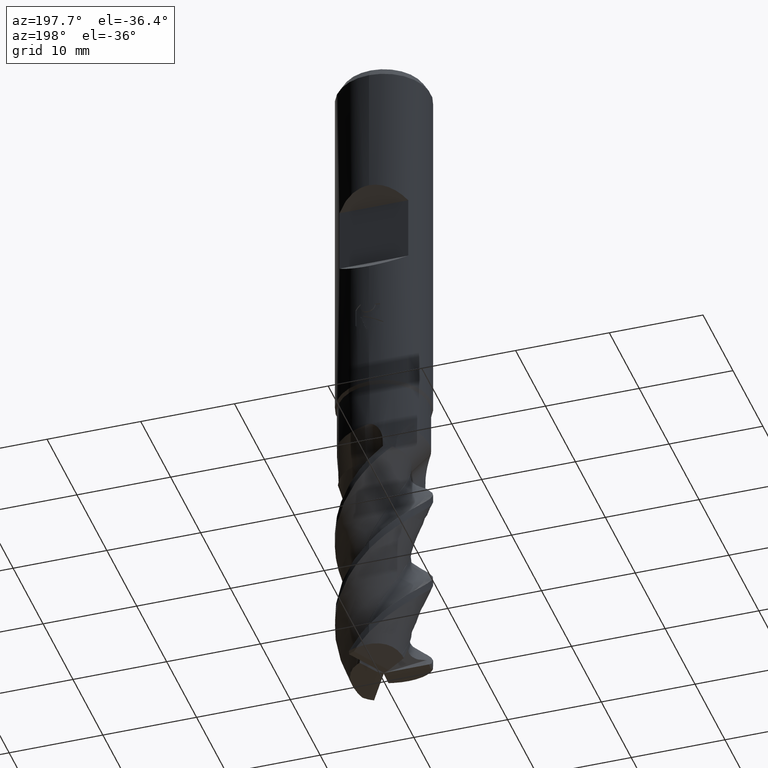
[diagram: clean part render]
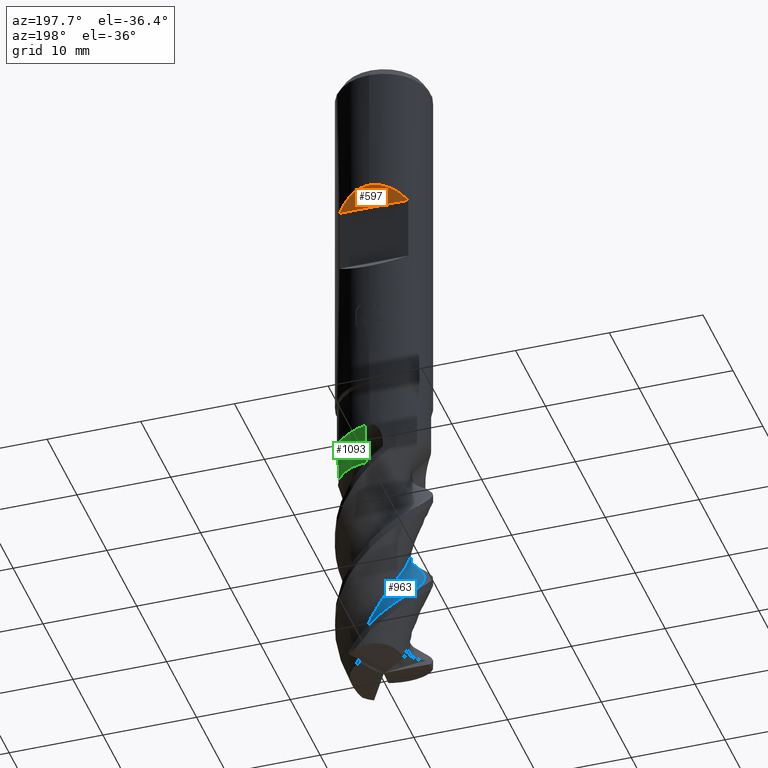
[diagram: same view with three faces highlighted in distinct colors, each labeled with its STEP entity id]
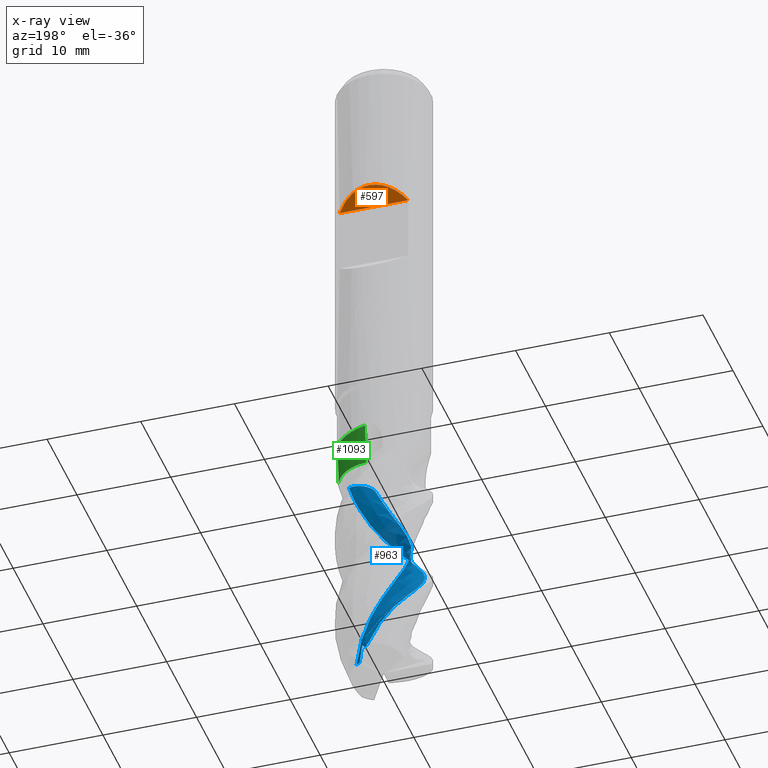
[diagram: x-ray of the same camera — body ghosted, the three highlighted faces saturated]
A machine part, auxiliary view with three faces highlighted in distinct colors.
The next image is the same camera in x-ray (body ghosted, the three faces saturated) — at least one of them is partly hidden behind the body in this view.
Their STEP definitions:

[orange] entity #597 — the highlighted planar face has unit normal (0, -0.7071, 0.7071).
#557=EDGE_CURVE('',#767,#1017,#1468,.T.);
#597=ADVANCED_FACE('',(#1510),#1511,.F.);
#767=VERTEX_POINT('',#1698);
#861=EDGE_CURVE('',#1017,#1009,#1799,.T.);
#1009=VERTEX_POINT('',#1956);
#1017=VERTEX_POINT('',#1965);
#1235=EDGE_CURVE('',#1009,#767,#2210,.T.);
#1468=LINE('',#2865,#2866);
#1510=FACE_OUTER_BOUND('',#3085,.T.);
#1511=PLANE('',#3086);
#1698=CARTESIAN_POINT('',(-3.66606055596467,3.4,-16.5));
#1799=ELLIPSE('',#5457,7.07106781186548,5.0);
#1956=CARTESIAN_POINT('',(-6.12303176911189E-016,5.0,-14.9));
#1965=CARTESIAN_POINT('',(3.66606055596467,3.4,-16.5));
#2210=ELLIPSE('',#8211,7.07106781186548,5.0);
#2865=CARTESIAN_POINT('',(-5.0,3.4,-16.5));
#2866=VECTOR('',#9536,1.0);
#3085=EDGE_LOOP('',(#9580,#9581,#9582));
#3086=AXIS2_PLACEMENT_3D('',#9583,#9584,#9585);
#5457=AXIS2_PLACEMENT_3D('',#9877,#9878,#9879);
#8211=AXIS2_PLACEMENT_3D('',#10332,#10333,#10334);
#9536=DIRECTION('',(1.0,0.0,0.0));
#9580=ORIENTED_EDGE('',*,*,#861,.F.);
#9581=ORIENTED_EDGE('',*,*,#557,.F.);
#9582=ORIENTED_EDGE('',*,*,#1235,.F.);
#9583=CARTESIAN_POINT('',(-5.0,3.4,-16.5));
#9584=DIRECTION('',(0.0,-0.707106781186548,0.707106781186547));
#9585=DIRECTION('',(0.0,-0.707106781186547,-0.707106781186548));
#9877=CARTESIAN_POINT('',(0.0,0.0,-19.9));
#9878=DIRECTION('',(0.0,-0.707106781186548,0.707106781186547));
#9879=DIRECTION('',(0.0,0.707106781186547,0.707106781186548));
#10332=CARTESIAN_POINT('',(0.0,0.0,-19.9));
#10333=DIRECTION('',(0.0,-0.707106781186548,0.707106781186547));
#10334=DIRECTION('',(0.0,0.707106781186547,0.707106781186548));

[blue] entity #963 — the highlighted face is a freeform B-spline surface patch.
#475=VERTEX_POINT('',#1378);
#539=EDGE_CURVE('',#1025,#807,#1448,.T.);
#561=VERTEX_POINT('',#1472);
#765=VERTEX_POINT('',#1696);
#807=VERTEX_POINT('',#1739);
#963=ADVANCED_FACE('',(#1909),#1910,.T.);
#989=EDGE_CURVE('',#1025,#475,#1936,.T.);
#1007=EDGE_CURVE('',#1319,#765,#1954,.T.);
#1025=VERTEX_POINT('',#1973);
#1083=EDGE_CURVE('',#807,#1319,#2038,.T.);
#1265=EDGE_CURVE('',#561,#475,#2243,.T.);
#1319=VERTEX_POINT('',#2301);
#1349=EDGE_CURVE('',#765,#561,#2334,.T.);
#1378=CARTESIAN_POINT('',(4.06640699642665,-0.986518878703578,-48.0));
#1448=B_SPLINE_CURVE_WITH_KNOTS('',3,(#2785,#2786,#2787,#2788,#2789,#2790,#2791,#2792,#2793,#2794,#2795,#2796),.UNSPECIFIED.,.F.,.F.,(4,2,2,2,2,4),(0.0,1.02673922118474,1.71301047965753,2.2225657707492,2.69569481619198,3.17992072773197),.UNSPECIFIED.);
#1472=CARTESIAN_POINT('',(1.69258352083034,-2.26198297649517,-47.9999999999999));
#1696=CARTESIAN_POINT('',(2.49057545117904,1.33481166037854,-72.3034927063041));
#1739=CARTESIAN_POINT('',(1.64875925034888,2.13836985542889,-70.661661749969));
#1909=FACE_OUTER_BOUND('',#6089,.T.);
#1910=B_SPLINE_SURFACE_WITH_KNOTS('',3,3,((#6090,#6091,#6092,#6093,#6094,#6095,#6096,#6097,#6098,#6099,#6100,#6101,#6102,#6103,#6104,#6105,#6106,#6107,#6108,#6109,#6110,#6111,#6112,#6113,#6114,#6115,#6116,#6117,#6118,#6119,#6120,#6121,#6122,#6123,#6124,#6125,#6126,#6127,#6128,#6129,#6130,#6131,#6132,#6133,#6134,#6135,#6136,#6137,#6138,#6139,#6140,#6141,#6142),(#6143,#6144,#6145,#6146,#6147,#6148,#6149,#6150,#6151,#6152,#6153,#6154,#6155,#6156,#6157,#6158,#6159,#6160,#6161,#6162,#6163,#6164,#6165,#6166,#6167,#6168,#6169,#6170,#6171,#6172,#6173,#6174,#6175,#6176,#6177,#6178,#6179,#6180,#6181,#6182,#6183,#6184,#6185,#6186,#6187,#6188,#6189,#6190,#6191,#6192,#6193,#6194,#6195),(#6196,#6197,#6198,#6199,#6200,#6201,#6202,#6203,#6204,#6205,#6206,#6207,#6208,#6209,#6210,#6211,#6212,#6213,#6214,#6215,#6216,#6217,#6218,#6219,#6220,#6221,#6222,#6223,#6224,#6225,#6226,#6227,#6228,#6229,#6230,#6231,#6232,#6233,#6234,#6235,#6236,#6237,#6238,#6239,#6240,#6241,#6242,#6243,#6244,#6245,#6246,#6247,#6248),(#6249,#6250,#6251,#6252,#6253,#6254,#6255,#6256,#6257,#6258,#6259,#6260,#6261,#6262,#6263,#6264,#6265,#6266,#6267,#6268,#6269,#6270,#6271,#6272,#6273,#6274,#6275,#6276,#6277,#6278,#6279,#6280,#6281,#6282,#6283,#6284,#6285,#6286,#6287,#6288,#6289,#6290,#6291,#6292,#6293,#6294,#6295,#6296,#6297,#6298,#6299,#6300,#6301),(#6302,#6303,#6304,#6305,#6306,#6307,#6308,#6309,#6310,#6311,#6312,#6313,#6314,#6315,#6316,#6317,#6318,#6319,#6320,#6321,#6322,#6323,#6324,#6325,#6326,#6327,#6328,#6329,#6330,#6331,#6332,#6333,#6334,#6335,#6336,#6337,#6338,#6339,#6340,#6341,#6342,#6343,#6344,#6345,#6346,#6347,#6348,#6349,#6350,#6351,#6352,#6353,#6354),(#6355,#6356,#6357,#6358,#6359,#6360,#6361,#6362,#6363,#6364,#6365,#6366,#6367,#6368,#6369,#6370,#6371,#6372,#6373,#6374,#6375,#6376,#6377,#6378,#6379,#6380,#6381,#6382,#6383,#6384,#6385,#6386,#6387,#6388,#6389,#6390,#6391,#6392,#6393,#6394,#6395,#6396,#6397,#6398,#6399,#6400,#6401,#6402,#6403,#6404,#6405,#6406,#6407),(#6408,#6409,#6410,#6411,#6412,#6413,#6414,#6415,#6416,#6417,#6418,#6419,#6420,#6421,#6422,#6423,#6424,#6425,#6426,#6427,#6428,#6429,#6430,#6431,#6432,#6433,#6434,#6435,#6436,#6437,#6438,#6439,#6440,#6441,#6442,#6443,#6444,#6445,#6446,#6447,#6448,#6449,#6450,#6451,#6452,#6453,#6454,#6455,#6456,#6457,#6458,#6459,#6460)),.UNSPECIFIED.,.F.,.F.,.F.,(4,1,1,1,4),(4,1,2,1,2,1,2,1,2,1,2,1,2,1,2,1,2,1,2,1,2,1,2,1,2,1,2,1,2,1,2,1,2,1,4),(-1.0741206365629E-016,0.362155819767068,0.724311639534135,1.0864674593012,1.44862327906827),(0.0,0.706621103411192,1.41324220682238,2.11986331023358,2.82648441364477,4.23972662046715,5.65296882728954,7.06621103411192,8.47945324093431,9.89269544775669,11.3059376545791,12.7191798614015,14.1324220682238,15.5456642750462,16.9589064818686,18.372148688691,19.7853908955134,21.1986331023358,22.6118753091582,24.0251175159805,25.4383597228029,26.8516019296253,28.2648441364477,29.6780863432701,31.0913285500925,32.5045707569148,33.9178129637372,35.3310551705596,36.744297377382,38.1575395842044,39.5707817910268,40.9840239978492,42.3972662046715,43.8105084114939,45.2237506183163),.UNSPECIFIED.);
#1936=B_SPLINE_CURVE_WITH_KNOTS('',3,(#6505,#6506,#6507,#6508,#6509,#6510,#6511,#6512,#6513,#6514,#6515,#6516,#6517,#6518,#6519,#6520,#6521,#6522,#6523,#6524,#6525,#6526,#6527,#6528,#6529,#6530,#6531,#6532,#6533,#6534,#6535,#6536,#6537,#6538,#6539,#6540,#6541,#6542,#6543,#6544,#6545,#6546,#6547,#6548,#6549,#6550,#6551,#6552,#6553,#6554,#6555,#6556,#6557),.UNSPECIFIED.,.F.,.F.,(4,1,2,1,2,1,2,1,2,1,2,1,2,1,2,1,2,1,2,1,2,1,2,1,2,1,2,1,2,1,2,1,2,1,4),(0.0,0.706621103411192,1.41324220682238,2.11986331023358,2.82648441364477,4.23972662046715,5.65296882728954,7.06621103411192,8.47945324093431,9.89269544775669,11.3059376545791,12.7191798614015,14.1324220682238,15.5456642750462,16.9589064818686,18.372148688691,19.7853908955134,21.1986331023358,22.6118753091582,24.0251175159805,25.4383597228029,26.8516019296253,28.2648441364477,29.6780863432701,31.0913285500925,32.5045707569148,33.9178129637372,35.3310551705596,36.744297377382,38.1575395842044,39.5707817910268,40.9840239978492,42.3972662046715,43.8105084114939,45.2237506183163),.UNSPECIFIED.);
#1954=B_SPLINE_CURVE_WITH_KNOTS('',3,(#6659,#6660,#6661,#6662,#6663,#6664,#6665,#6666,#6667,#6668),.UNSPECIFIED.,.F.,.F.,(4,2,2,2,4),(0.0,1.12573722191872,2.0004992104101,2.44100699478742,2.87193624953085),.UNSPECIFIED.);
#1973=CARTESIAN_POINT('',(0.720593860777215,4.12172549856063,-71.2433768470738));
#2038=B_SPLINE_CURVE_WITH_KNOTS('',3,(#6867,#6868,#6869,#6870,#6871,#6872,#6873,#6874,#6875,#6876,#6877,#6878,#6879,#6880),.UNSPECIFIED.,.F.,.F.,(4,2,2,2,2,2,4),(0.0,0.16621596690077,0.225050475001909,0.2595427396006,1.72408795182167,2.65228253494648,3.75516007197663),.UNSPECIFIED.);
#2243=B_SPLINE_CURVE_WITH_KNOTS('',3,(#8275,#8276,#8277,#8278,#8279,#8280,#8281,#8282,#8283,#8284),.UNSPECIFIED.,.F.,.F.,(4,2,2,2,4),(0.0,0.794502332663491,1.58897031884491,2.27139265013291,2.9538042096642),.UNSPECIFIED.);
#2301=CARTESIAN_POINT('',(2.09483177205917,1.61215054976336,-72.3697940763852));
#2334=B_SPLINE_CURVE_WITH_KNOTS('',3,(#9366,#9367,#9368,#9369,#9370,#9371,#9372,#9373,#9374,#9375,#9376,#9377,#9378,#9379,#9380,#9381,#9382,#9383,#9384,#9385,#9386,#9387,#9388,#9389,#9390,#9391,#9392,#9393,#9394,#9395,#9396,#9397,#9398,#9399,#9400,#9401,#9402,#9403,#9404,#9405,#9406,#9407,#9408,#9409,#9410,#9411,#9412,#9413,#9414,#9415,#9416,#9417,#9418),.UNSPECIFIED.,.F.,.F.,(4,1,2,1,2,1,2,1,2,1,2,1,2,1,2,1,2,1,2,1,2,1,2,1,2,1,2,1,2,1,2,1,2,1,4),(0.0,0.706621103411192,1.41324220682238,2.11986331023358,2.82648441364477,4.23972662046715,5.65296882728954,7.06621103411192,8.47945324093431,9.89269544775669,11.3059376545791,12.7191798614015,14.1324220682238,15.5456642750462,16.9589064818686,18.372148688691,19.7853908955134,21.1986331023358,22.6118753091582,24.0251175159805,25.4383597228029,26.8516019296253,28.2648441364477,29.6780863432701,31.0913285500925,32.5045707569148,33.9178129637372,35.3310551705596,36.744297377382,38.1575395842044,39.5707817910268,40.9840239978492,42.3972662046715,43.8105084114939,45.2237506183163),.UNSPECIFIED.);
#2785=CARTESIAN_POINT('',(0.720593860789628,4.12172549855254,-71.2433768470937));
#2786=CARTESIAN_POINT('',(0.725421223878158,3.78711420633881,-71.3151025944598));
#2787=CARTESIAN_POINT('',(0.764150281469213,3.46167096913589,-71.3467692998475));
#2788=CARTESIAN_POINT('',(0.88793093994409,2.97815444571011,-71.3196751190944));
#2789=CARTESIAN_POINT('',(0.956390126308941,2.78882670065318,-71.2866901829376));
#2790=CARTESIAN_POINT('',(1.11655827538374,2.5014616668917,-71.1736543652184));
#2791=CARTESIAN_POINT('',(1.19622919979575,2.39532327133872,-71.1089448519812));
#2792=CARTESIAN_POINT('',(1.37162757504882,2.23672091297533,-70.9491818142328));
#2793=CARTESIAN_POINT('',(1.46162434312015,2.18481225883354,-70.8604145765696));
#2794=CARTESIAN_POINT('',(1.64935495477179,2.12960025744241,-70.6630164048915));
#2795=CARTESIAN_POINT('',(1.74369316839668,2.12845859589636,-70.5576878850685));
#2796=CARTESIAN_POINT('',(1.83412567497528,2.14888380482918,-70.4517597464415));
#6089=EDGE_LOOP('',(#10008,#10009,#10010,#10011,#10012,#10013));
#6090=CARTESIAN_POINT('',(-0.0295267974289208,-2.8062706708835,-83.0));
#6091=CARTESIAN_POINT('',(-0.00579214034271125,-2.81836501815114,-82.7657573744245));
#6092=CARTESIAN_POINT('',(0.110249636485281,-2.83687405350782,-82.2962836057392));
#6093=CARTESIAN_POINT('',(0.369687260640706,-2.8148543973796,-81.8266250246895));
#6094=CARTESIAN_POINT('',(0.691709811960466,-2.74553010652248,-81.3586313636446));
#6095=CARTESIAN_POINT('',(0.98493525757139,-2.65615673053245,-80.8908841060232));
#6096=CARTESIAN_POINT('',(1.22972766946684,-2.54336811107991,-80.4224805869103));
#6097=CARTESIAN_POINT('',(1.57058070090469,-2.36082931578825,-79.7188175917944));
#6098=CARTESIAN_POINT('',(1.98308727991386,-2.06261663832254,-78.780738373979));
#6099=CARTESIAN_POINT('',(2.31302673863841,-1.64833517413564,-77.8427121613197));
#6100=CARTESIAN_POINT('',(2.58574280380322,-1.16897408983097,-76.9056367202964));
#6101=CARTESIAN_POINT('',(2.77898930903544,-0.677338665511546,-75.9687965598908));
#6102=CARTESIAN_POINT('',(2.83500336335747,-0.154714894506033,-75.0310184420522));
#6103=CARTESIAN_POINT('',(2.81049090104807,0.390551518738405,-74.0933756828997));
#6104=CARTESIAN_POINT('',(2.71268069040657,0.908268417233613,-73.1560869021415));
#6105=CARTESIAN_POINT('',(2.48041418279797,1.3814782330913,-72.2182810861045));
#6106=CARTESIAN_POINT('',(2.16881870084257,1.82954142425093,-71.2808143599673));
#6107=CARTESIAN_POINT('',(1.81050549060134,2.21475408577214,-70.3436392584322));
#6108=CARTESIAN_POINT('',(1.36214200708264,2.4911936648393,-69.4058280161813));
#6109=CARTESIAN_POINT('',(0.859218613087223,2.70425694041287,-68.4683224547961));
#6110=CARTESIAN_POINT('',(0.350228151292189,2.83910209629625,-67.5311281722079));
#6111=CARTESIAN_POINT('',(-0.176554377660197,2.83373931474158,-66.5933214556663));
#6112=CARTESIAN_POINT('',(-0.715426810014246,2.7457845768792,-65.6558209541882));
#6113=CARTESIAN_POINT('',(-1.21777287057104,2.58847108592242,-64.718627242495));
#6114=CARTESIAN_POINT('',(-1.66054274676615,2.30302139551494,-63.7808188015143));
#6115=CARTESIAN_POINT('',(-2.06952686011407,1.94119646451344,-62.8433187375526));
#6116=CARTESIAN_POINT('',(-2.41059604237042,1.54018465260034,-61.9061261134421));
#6117=CARTESIAN_POINT('',(-2.63290748886635,1.06258608848229,-60.9683179751972));
#6118=CARTESIAN_POINT('',(-2.78590976958771,0.538408617530619,-60.0308170927708));
#6119=CARTESIAN_POINT('',(-2.86056660623762,0.0172953472058144,-59.0936238037233));
#6120=CARTESIAN_POINT('',(-2.79391970660287,-0.505275173188127,-58.1558156233938));
#6121=CARTESIAN_POINT('',(-2.64380327554972,-1.03028287715087,-57.2183149961937));
#6122=CARTESIAN_POINT('',(-2.42904770931378,-1.51091724092596,-56.2811217844332));
#6123=CARTESIAN_POINT('',(-2.09398076025588,-1.91743044620551,-55.3433134708685));
#6124=CARTESIAN_POINT('',(-1.68700212702891,-2.28149175142107,-54.4058127146327));
#6125=CARTESIAN_POINT('',(-1.24901130954022,-2.57354042514841,-53.4686196673999));
#6126=CARTESIAN_POINT('',(-0.748790655610307,-2.73872455856443,-52.5308115609984));
#6127=CARTESIAN_POINT('',(-0.210384897271767,-2.82965258644513,-51.593310692463));
#6128=CARTESIAN_POINT('',(0.315877987856017,-2.84313159005411,-50.6561172290739));
#6129=CARTESIAN_POINT('',(0.827169256171959,-2.71607941985024,-49.7183104962397));
#6130=CARTESIAN_POINT('',(1.33115914371812,-2.50582984445344,-48.7808128753876));
#6131=CARTESIAN_POINT('',(1.78348346828864,-2.23657857765939,-47.8436203505846));
#6132=CARTESIAN_POINT('',(2.14817427376636,-1.85652482175113,-46.9058036046865));
#6133=CARTESIAN_POINT('',(2.46236404156758,-1.40995586065752,-45.9682893688544));
#6134=CARTESIAN_POINT('',(2.70148262217668,-0.940822720790734,-45.0310984323535));
#6135=CARTESIAN_POINT('',(2.80726032377397,-0.424809949635591,-44.0933269658143));
#6136=CARTESIAN_POINT('',(2.83494344440001,0.120152518143714,-43.1558737667204));
#6137=CARTESIAN_POINT('',(2.78730206422883,0.644086538362228,-42.2186602670208));
#6138=CARTESIAN_POINT('',(2.60107349204418,1.13843722522087,-41.2807432419501));
#6139=CARTESIAN_POINT('',(2.33161364305409,1.61661510235977,-40.3431386916283));
#6140=CARTESIAN_POINT('',(2.01024936391757,2.03402102584999,-39.406048687332));
#6141=CARTESIAN_POINT('',(1.59718064667244,2.34734388991507,-38.4684311403967));
#6142=CARTESIAN_POINT('',(1.36329029917874,2.4757703465466,-37.9996932800318));
#6143=CARTESIAN_POINT('',(0.178850158625455,-2.67653930031989,-83.0));
#6144=CARTESIAN_POINT('',(0.20091473316203,-2.6859511458201,-82.7657417541644));
#6145=CARTESIAN_POINT('',(0.310833133590406,-2.69467211327805,-82.2963585972014));
#6146=CARTESIAN_POINT('',(0.556343000668614,-2.65483460979078,-81.8268125234756));
#6147=CARTESIAN_POINT('',(0.85898852976056,-2.56535133670816,-81.3587238535191));
#6148=CARTESIAN_POINT('',(1.13240338600062,-2.458777131082,-80.8908512344283));
#6149=CARTESIAN_POINT('',(1.35744063425004,-2.33344687394403,-80.4224046600466));
#6150=CARTESIAN_POINT('',(1.66871955760013,-2.13472088240561,-79.7188090680845));
#6151=CARTESIAN_POINT('',(2.03966274466036,-1.82065896142973,-78.7808021633608));
#6152=CARTESIAN_POINT('',(2.3237898221972,-1.40195349783937,-77.8428414203539));
#6153=CARTESIAN_POINT('',(2.54888740820884,-0.925127363863783,-76.9057127831286));
#6154=CARTESIAN_POINT('',(2.69708306950062,-0.442681993841333,-75.9687901223826));
#6155=CARTESIAN_POINT('',(2.71231873929647,0.0591968254049684,-75.0310467288362));
#6156=CARTESIAN_POINT('',(2.64925030996146,0.577128505246978,-74.0934217286891));
#6157=CARTESIAN_POINT('',(2.51828423671531,1.06314723638338,-73.1561065172414));
#6158=CARTESIAN_POINT('',(2.26253281858757,1.4969652263998,-72.2183387922939));
#6159=CARTESIAN_POINT('',(1.93290969902551,1.90134839408105,-71.2808678435945));
#6160=CARTESIAN_POINT('',(1.5634748347582,2.24212122002357,-70.3436520796732));
#6161=CARTESIAN_POINT('',(1.11623565397071,2.47274342346616,-69.4058796389849));
#6162=CARTESIAN_POINT('',(0.621355875873478,2.63920751863174,-68.4683747039127));
#6163=CARTESIAN_POINT('',(0.126667719223582,2.73049525853547,-67.5311421551177));
#6164=CARTESIAN_POINT('',(-0.3747200739806,2.68697298456307,-66.5933736923854));
#6165=CARTESIAN_POINT('',(-0.881944689454146,2.56390122128844,-65.6558731504999));
#6166=CARTESIAN_POINT('',(-1.34897178397682,2.37737595733165,-64.7186411287067));
#6167=CARTESIAN_POINT('',(-1.74991010055472,2.07318757857148,-63.7808711397653));
#6168=CARTESIAN_POINT('',(-2.11339026950426,1.69853235543636,-62.843370994989));
#6169=CARTESIAN_POINT('',(-2.4090006102668,1.29164523794195,-61.9061399095688));
#6170=CARTESIAN_POINT('',(-2.58593264669127,0.820504596149241,-60.9683702045189));
#6171=CARTESIAN_POINT('',(-2.69360057522057,0.309741043433766,-60.0308693220925));
#6172=CARTESIAN_POINT('',(-2.72666979960611,-0.19209906671253,-59.0936376784364));
#6173=CARTESIAN_POINT('',(-2.62507949753104,-0.685005701007097,-58.1558679076634));
#6174=CARTESIAN_POINT('',(-2.4437675368529,-1.17448947519867,-57.2183672804633));
#6175=CARTESIAN_POINT('',(-2.2041105578436,-1.61664162118672,-56.2811356975087));
#6176=CARTESIAN_POINT('',(-1.85530390323655,-1.97942596476705,-55.3433657687867));
#6177=CARTESIAN_POINT('',(-1.44088119884898,-2.29679975024918,-54.4058650933655));
#6178=CARTESIAN_POINT('',(-1.00234847607464,-2.54301546511175,-53.4686335894745));
#6179=CARTESIAN_POINT('',(-0.513825470422294,-2.66388201147269,-52.5308639018294));
#6180=CARTESIAN_POINT('',(0.00597980527220332,-2.71134736947175,-51.5933630737013));
#6181=CARTESIAN_POINT('',(0.508258773331583,-2.6857653855919,-50.6561312471014));
#6182=CARTESIAN_POINT('',(0.986017187807473,-2.52745947192239,-49.7183627666569));
#6183=CARTESIAN_POINT('',(1.45108965047298,-2.29036154863384,-48.7808647417319));
#6184=CARTESIAN_POINT('',(1.86229564059652,-2.00086132732106,-47.8436337537276));
#6185=CARTESIAN_POINT('',(2.18196132254589,-1.61225354586633,-46.9058564594611));
#6186=CARTESIAN_POINT('',(2.44891706213728,-1.16372636455924,-45.96834400155));
#6187=CARTESIAN_POINT('',(2.64244200425446,-0.69939126293611,-45.031114413061));
#6188=CARTESIAN_POINT('',(2.70556943421482,-0.200158276431937,-44.0933767893203));
#6189=CARTESIAN_POINT('',(2.69227322867748,0.321285272505891,-43.1559175291323));
#6190=CARTESIAN_POINT('',(2.60864045571705,0.816875719672292,-42.2186679844878));
#6191=CARTESIAN_POINT('',(2.39520238146858,1.27420261442554,-41.2808029839405));
#6192=CARTESIAN_POINT('',(2.10353648932136,1.71040063018925,-40.3432119296547));
#6193=CARTESIAN_POINT('',(1.76693347981976,2.08454932163039,-39.4060714517089));
#6194=CARTESIAN_POINT('',(1.35068922135226,2.35278361381217,-38.4684700536979));
#6195=CARTESIAN_POINT('',(1.11846550776832,2.45810670122647,-37.9997315872236));
#6196=CARTESIAN_POINT('',(0.643023809416712,-2.49338312993766,-83.0));
#6197=CARTESIAN_POINT('',(0.662730535056639,-2.49681951563318,-82.7657115530743));
#6198=CARTESIAN_POINT('',(0.763986531263713,-2.48372610527084,-82.2965035907147));
#6199=CARTESIAN_POINT('',(0.988166570262678,-2.40316063652515,-81.8271750452194));
#6200=CARTESIAN_POINT('',(1.25944220881761,-2.26627334068691,-81.3589026799032));
#6201=CARTESIAN_POINT('',(1.49953748044843,-2.11805184952298,-80.8907876778825));
#6202=CARTESIAN_POINT('',(1.68966069740147,-1.96041156863357,-80.4222578586295));
#6203=CARTESIAN_POINT('',(1.94772494541083,-1.71849174111648,-79.7187925868418));
#6204=CARTESIAN_POINT('',(2.2413548333768,-1.35752361880255,-78.7809255006745));
#6205=CARTESIAN_POINT('',(2.43549017296187,-0.913203819756785,-77.843091333426));
#6206=CARTESIAN_POINT('',(2.56443737374826,-0.424018141516402,-76.9058598525867));
#6207=CARTESIAN_POINT('',(2.61918129175708,0.0565388356696159,-75.9687776931213));
#6208=CARTESIAN_POINT('',(2.54527969145245,0.531859161943307,-75.0311013807936));
#6209=CARTESIAN_POINT('',(2.39510626941486,1.00924140530034,-74.0935107961153));
#6210=CARTESIAN_POINT('',(2.18623670892313,1.44400862426872,-73.1561444126664));
#6211=CARTESIAN_POINT('',(1.8691048672016,1.80765048876328,-72.2184503849865));
#6212=CARTESIAN_POINT('',(1.48744471979982,2.13128504036157,-71.2809712324632));
#6213=CARTESIAN_POINT('',(1.07950460567862,2.38726219286132,-70.3436768769964));
#6214=CARTESIAN_POINT('',(0.617744205159369,2.52585196854722,-69.4059794538308));
#6215=CARTESIAN_POINT('',(0.12189360841691,2.59618773992088,-68.4684757217315));
#6216=CARTESIAN_POINT('',(-0.360136580481295,2.59513903844722,-67.5311692127162));
#6217=CARTESIAN_POINT('',(-0.824709194517431,2.46601464558426,-66.5934746499186));
#6218=CARTESIAN_POINT('',(-1.28150081887887,2.26113609235053,-65.6559741105164));
#6219=CARTESIAN_POINT('',(-1.68859233281909,2.00326910419658,-64.7186679697897));
#6220=CARTESIAN_POINT('',(-2.01273865683843,1.64629836645541,-63.7809723084389));
#6221=CARTESIAN_POINT('',(-2.28992062890869,1.22933164703129,-62.8434720583576));
#6222=CARTESIAN_POINT('',(-2.49677740551311,0.794057446698871,-61.9061666041439));
#6223=CARTESIAN_POINT('',(-2.58060067705274,0.319221513603215,-60.9684711220575));
#6224=CARTESIAN_POINT('',(-2.59270397135685,-0.181310944816684,-60.0309703716155));
#6225=CARTESIAN_POINT('',(-2.5355564075364,-0.659831902494234,-59.093664475029));
#6226=CARTESIAN_POINT('',(-2.35323266700799,-1.10620925315957,-58.1559689908431));
#6227=CARTESIAN_POINT('',(-2.09653702136927,-1.53607366064563,-57.2184683768478));
#6228=CARTESIAN_POINT('',(-1.79299998142182,-1.91038708262704,-56.2811625405062));
#6229=CARTESIAN_POINT('',(-1.40071299135905,-2.19075570198025,-55.3434669932277));
#6230=CARTESIAN_POINT('',(-0.954316415088458,-2.41749314319001,-54.4059662575376));
#6231=CARTESIAN_POINT('',(-0.497924868841552,-2.57225509099402,-53.468660565304));
#6232=CARTESIAN_POINT('',(-0.0165730784634843,-2.60021839587036,-52.5309650932267));
#6233=CARTESIAN_POINT('',(0.48194448940779,-2.55396364816158,-51.5934643587175));
#6234=CARTESIAN_POINT('',(0.950559449887159,-2.44149316305144,-50.6561583667534));
#6235=CARTESIAN_POINT('',(1.37270137087691,-2.20841594173526,-49.7184637892469));
#6236=CARTESIAN_POINT('',(1.76977740141298,-1.90338536413467,-48.7809650638549));
#6237=CARTESIAN_POINT('',(2.10617039173069,-1.55834375065582,-47.8436596167297));
#6238=CARTESIAN_POINT('',(2.33893023585246,-1.1361509666236,-46.9059587148843));
#6239=CARTESIAN_POINT('',(2.51214889983472,-0.666419970440229,-45.9684495693693));
#6240=CARTESIAN_POINT('',(2.61274419140892,-0.194991890355506,-45.0311453625493));
#6241=CARTESIAN_POINT('',(2.58444243301323,0.286296890682049,-44.0934730811111));
#6242=CARTESIAN_POINT('',(2.4805918398213,0.775708411083647,-43.1560021823743));
#6243=CARTESIAN_POINT('',(2.31461319447284,1.22779337370644,-42.2186828295242));
#6244=CARTESIAN_POINT('',(2.0332133535836,1.62104271257158,-41.2809186055628));
#6245=CARTESIAN_POINT('',(1.68177714855064,1.98142125411099,-40.3433534202141));
#6246=CARTESIAN_POINT('',(1.2988688174905,2.27464599165641,-39.4061154942895));
#6247=CARTESIAN_POINT('',(0.859771712488526,2.45387903456951,-38.4685453467772));
#6248=CARTESIAN_POINT('',(0.622424758797924,2.51239234125966,-37.9998056528153));
#6249=CARTESIAN_POINT('',(1.39150148692073,-2.48314652306923,-83.0));
#6250=CARTESIAN_POINT('',(1.41107640649325,-2.47694750123847,-82.7656752298704));
#6251=CARTESIAN_POINT('',(1.51177448556246,-2.42864940795475,-82.2966779756015));
#6252=CARTESIAN_POINT('',(1.72767892605354,-2.27961525372294,-81.8276110535731));
#6253=CARTESIAN_POINT('',(1.98014286940968,-2.05955820474562,-81.3591177557073));
#6254=CARTESIAN_POINT('',(2.19563195694751,-1.83520624853889,-80.8907112384264));
#6255=CARTESIAN_POINT('',(2.35394993835075,-1.6136863028952,-80.4220812984091));
#6256=CARTESIAN_POINT('',(2.56032139939622,-1.28289297084263,-79.7187727664337));
#6257=CARTESIAN_POINT('',(2.77042627897121,-0.815036111295263,-78.7810738361574));
#6258=CARTESIAN_POINT('',(2.85193562321724,-0.286957341076823,-77.8433919111391));
#6259=CARTESIAN_POINT('',(2.85257300804352,0.270666776469238,-76.9060367292604));
#6260=CARTESIAN_POINT('',(2.77522048019825,0.798241107183,-75.9687627314463));
#6261=CARTESIAN_POINT('',(2.56216341758617,1.2836789634893,-75.0311671420274));
#6262=CARTESIAN_POINT('',(2.26824965302614,1.75047231317338,-74.0936178874534));
#6263=CARTESIAN_POINT('',(1.92285973323681,2.15474764578637,-73.1561900068401));
#6264=CARTESIAN_POINT('',(1.48232806806735,2.45256899991778,-72.2185845953038));
#6265=CARTESIAN_POINT('',(0.984755964248913,2.69058637937644,-71.2810955823637));
#6266=CARTESIAN_POINT('',(0.47773522481067,2.84807753823472,-70.3437066993093));
#6267=CARTESIAN_POINT('',(-0.0533074219081093,2.8652830143423,-69.406099502128));
#6268=CARTESIAN_POINT('',(-0.601608782978725,2.801287242959,-68.4685972166503));
#6269=CARTESIAN_POINT('',(-1.11495618188127,2.66398296075488,-67.531201737006));
#6270=CARTESIAN_POINT('',(-1.5733795785959,2.39521108572493,-66.5935961087909));
#6271=CARTESIAN_POINT('',(-2.00290197247417,2.04877167641303,-65.6560954996597));
#6272=CARTESIAN_POINT('',(-2.3638323590792,1.65897379251341,-64.7187002615755));
#6273=CARTESIAN_POINT('',(-2.60830794109894,1.18714835974146,-63.7810940016937));
#6274=CARTESIAN_POINT('',(-2.78691908685308,0.664963135640474,-62.8435935913637));
#6275=CARTESIAN_POINT('',(-2.8843603359357,0.142698442146841,-61.9061986902959));
#6276=CARTESIAN_POINT('',(-2.83953581513095,-0.386805315196771,-60.9685925525775));
#6277=CARTESIAN_POINT('',(-2.71214488817615,-0.923775051245872,-60.0310918486726));
#6278=CARTESIAN_POINT('',(-2.51604910241398,-1.41753134845839,-59.0936967352086));
#6279=CARTESIAN_POINT('',(-2.19574487378191,-1.84154510922989,-58.1560905571693));
#6280=CARTESIAN_POINT('',(-1.80161639244497,-2.22784013020076,-57.2185899736537));
#6281=CARTESIAN_POINT('',(-1.37241530700001,-2.54094035746278,-56.2811948612428));
#6282=CARTESIAN_POINT('',(-0.875333573654603,-2.72880566481796,-55.3435886565988));
#6283=CARTESIAN_POINT('',(-0.335914372627723,-2.84539266117242,-54.4060880087128));
#6284=CARTESIAN_POINT('',(0.194133819262802,-2.88135588040172,-53.4686929430553));
#6285=CARTESIAN_POINT('',(0.714800815370273,-2.77518454140332,-52.5310868495095));
#6286=CARTESIAN_POINT('',(1.23326530270079,-2.58614680511861,-51.5935861226028));
#6287=CARTESIAN_POINT('',(1.7008351017701,-2.33389906201714,-50.6561909905456));
#6288=CARTESIAN_POINT('',(2.08469735333769,-1.96637540939214,-49.7185853290442));
#6289=CARTESIAN_POINT('',(2.42249279824915,-1.52991206239866,-48.7810856831305));
#6290=CARTESIAN_POINT('',(2.68345746616822,-1.06719719395335,-47.843690746642));
#6291=CARTESIAN_POINT('',(2.81215627356118,-0.551704370340616,-46.9060816889013));
#6292=CARTESIAN_POINT('',(2.86515094702293,-0.00241089004891992,-45.9685765461736));
#6293=CARTESIAN_POINT('',(2.83915546528539,0.528356024983446,-45.0311825651055));
#6294=CARTESIAN_POINT('',(2.67306135744392,1.03306440108715,-44.0935889239697));
#6295=CARTESIAN_POINT('',(2.42515838967532,1.52566838566078,-43.1561039637075));
#6296=CARTESIAN_POINT('',(2.12054439947697,1.96048843818851,-42.2187007471212));
#6297=CARTESIAN_POINT('',(1.70975369773647,2.29997002911053,-41.281057569937));
#6298=CARTESIAN_POINT('',(1.23417706801715,2.58575590407684,-40.3435236868864));
#6299=CARTESIAN_POINT('',(0.743303961145669,2.79007131703455,-39.4061684444354));
#6300=CARTESIAN_POINT('',(0.224848072721401,2.85660011809515,-38.4686358481962));
#6301=CARTESIAN_POINT('',(-0.0445634761917668,2.85217213508471,-37.9998947321593));
#6302=CARTESIAN_POINT('',(2.09506560518562,-2.73874513639073,-83.0));
#6303=CARTESIAN_POINT('',(2.11793090578856,-2.72348888341506,-82.7656525993276));
#6304=CARTESIAN_POINT('',(2.23057959031839,-2.64207154302964,-82.2967866233335));
#6305=CARTESIAN_POINT('',(2.46300235505937,-2.42607713484313,-81.8278827009817));
#6306=CARTESIAN_POINT('',(2.72733996721827,-2.12157942027476,-81.3592517554004));
#6307=CARTESIAN_POINT('',(2.94679017724097,-1.8173167144668,-80.8906636142472));
#6308=CARTESIAN_POINT('',(3.09799692116557,-1.52479182095132,-80.4219712949157));
#6309=CARTESIAN_POINT('',(3.28751414015266,-1.09257484259705,-79.7187604188576));
#6310=CARTESIAN_POINT('',(3.45737941661463,-0.495169861071688,-78.7811662542684));
#6311=CARTESIAN_POINT('',(3.46324099520044,0.151137219322944,-77.8435791795237));
#6312=CARTESIAN_POINT('',(3.36813611633447,0.818219119498377,-76.90614693085));
#6313=CARTESIAN_POINT('',(3.18391118593204,1.4365608701254,-75.9687534133267));
#6314=CARTESIAN_POINT('',(2.84430761677961,1.98076025045927,-75.031208104928));
#6315=CARTESIAN_POINT('',(2.41222388625411,2.48857587440876,-74.0936846174579));
#6316=CARTESIAN_POINT('',(1.92836452625231,2.91270333352118,-73.1562184095263));
#6317=CARTESIAN_POINT('',(1.34911679651083,3.19269097182143,-72.2186682122713));
#6318=CARTESIAN_POINT('',(0.712817309633819,3.39170900501206,-71.281173057019));
#6319=CARTESIAN_POINT('',(0.0782498129878637,3.49220354386595,-70.343725276147));
#6320=CARTESIAN_POINT('',(-0.560586146917705,3.42044210160893,-69.4061743026032));
#6321=CARTESIAN_POINT('',(-1.20552783886498,3.2494087483698,-68.4686729056399));
#6322=CARTESIAN_POINT('',(-1.79643421959363,2.995780406535,-67.5312220253471));
#6323=CARTESIAN_POINT('',(-2.29858162080757,2.59423889309419,-66.5936717388443));
#6324=CARTESIAN_POINT('',(-2.75275556906492,2.10575816181822,-65.6561711719978));
#6325=CARTESIAN_POINT('',(-3.11725904680207,1.5762313318788,-64.7187203640567));
#6326=CARTESIAN_POINT('',(-3.32792151797701,0.968773934062344,-63.7811698105409));
#6327=CARTESIAN_POINT('',(-3.45163125444642,0.313272048600825,-62.8436693205667));
#6328=CARTESIAN_POINT('',(-3.47757184142313,-0.32910545987029,-61.9062186873056));
#6329=CARTESIAN_POINT('',(-3.33181035576279,-0.955309194158584,-60.9686681851886));
#6330=CARTESIAN_POINT('',(-3.08688069863803,-1.57577332580668,-60.0311675555618));
#6331=CARTESIAN_POINT('',(-2.7662453384922,-2.13300361493424,-59.0937168148547));
#6332=CARTESIAN_POINT('',(-2.30898591934166,-2.58498797048747,-58.1561663134589));
#6333=CARTESIAN_POINT('',(-1.77090158327058,-2.97922899054841,-57.2186657160994));
#6334=CARTESIAN_POINT('',(-1.20249933776188,-3.27960618288127,-56.2812150050712));
#6335=CARTESIAN_POINT('',(-0.57464683028473,-3.41809397438372,-55.3436644594709));
#6336=CARTESIAN_POINT('',(0.0907864941296004,-3.46463013285733,-54.4061638612107));
#6337=CARTESIAN_POINT('',(0.731802683150155,-3.41559408408333,-53.4687131293549));
#6338=CARTESIAN_POINT('',(1.33675656677269,-3.19791561444711,-52.5311626824936));
#6339=CARTESIAN_POINT('',(1.92445966852127,-2.88242145192541,-51.5936620107827));
#6340=CARTESIAN_POINT('',(2.44057249179535,-2.49909098698993,-50.6562113238072));
#6341=CARTESIAN_POINT('',(2.83626939869255,-1.99227824892043,-49.718661012017));
#6342=CARTESIAN_POINT('',(3.16519283332971,-1.41190381896166,-48.7811608733031));
#6343=CARTESIAN_POINT('',(3.39731023393716,-0.812424212167194,-47.8437101327287));
#6344=CARTESIAN_POINT('',(3.46175098577215,-0.172815194554936,-46.9061582832327));
#6345=CARTESIAN_POINT('',(3.43050589370948,0.493474065383848,-45.9686556795338));
#6346=CARTESIAN_POINT('',(3.30715189883337,1.12458026307959,-45.0312057249921));
#6347=CARTESIAN_POINT('',(3.0204986583701,1.70000663800141,-44.0936611124538));
#6348=CARTESIAN_POINT('',(2.63901640743114,2.24663105377546,-43.1561673623486));
#6349=CARTESIAN_POINT('',(2.19864120916143,2.71442170982351,-42.2187119205991));
#6350=CARTESIAN_POINT('',(1.64780200988674,3.04946321562128,-41.2811441434551));
#6351=CARTESIAN_POINT('',(1.02970891873271,3.30947448504053,-40.3436297746033));
#6352=CARTESIAN_POINT('',(0.406373896397286,3.46889635718223,-39.406201426282));
#6353=CARTESIAN_POINT('',(-0.226223174830255,3.45814531334526,-38.4686922434014));
#6354=CARTESIAN_POINT('',(-0.547918768345327,3.40621777076901,-37.9999502315516));
#6355=CARTESIAN_POINT('',(2.47328015807184,-3.06426540357674,-83.0));
#6356=CARTESIAN_POINT('',(2.50033598580509,-3.0441402637969,-82.7656485998675));
#6357=CARTESIAN_POINT('',(2.62825734862516,-2.94489980920884,-82.2968058239737));
#6358=CARTESIAN_POINT('',(2.88679368215685,-2.69106536778314,-81.8279307095297));
#6359=CARTESIAN_POINT('',(3.17847835190161,-2.33673362845787,-81.3592754359863));
#6360=CARTESIAN_POINT('',(3.41927311302417,-1.98359176447788,-80.8906551972946));
#6361=CARTESIAN_POINT('',(3.58281856752021,-1.6451240586036,-80.4219518559963));
#6362=CARTESIAN_POINT('',(3.78578589185846,-1.14570051689049,-79.7187582331798));
#6363=CARTESIAN_POINT('',(3.96116646700874,-0.45803299350861,-78.7811825876351));
#6364=CARTESIAN_POINT('',(3.94779678349468,0.279843695216093,-77.8436122775462));
#6365=CARTESIAN_POINT('',(3.8188624663484,1.03777416668998,-76.9061664040528));
#6366=CARTESIAN_POINT('',(3.58945506221834,1.73794231396071,-75.9687517629551));
#6367=CARTESIAN_POINT('',(3.18484459685584,2.34866333928601,-75.0312153538924));
#6368=CARTESIAN_POINT('',(2.67631808242736,2.91468784199053,-74.093696400831));
#6369=CARTESIAN_POINT('',(2.11082872671958,3.38389783850246,-73.1562234370688));
#6370=CARTESIAN_POINT('',(1.44089570870248,3.68553366505216,-72.2186829834085));
#6371=CARTESIAN_POINT('',(0.70890445757233,3.89300831578856,-71.2811867552512));
#6372=CARTESIAN_POINT('',(-0.0186360576619462,3.98809940286235,-70.3437285599023));
#6373=CARTESIAN_POINT('',(-0.745682656851632,3.88633900126444,-69.4061875141971));
#6374=CARTESIAN_POINT('',(-1.47615082128586,3.67140740172177,-68.4686862897236));
#6375=CARTESIAN_POINT('',(-2.14288222219276,3.36358470127987,-67.5312256005067));
#6376=CARTESIAN_POINT('',(-2.7036471237717,2.88960500474951,-66.593685117757));
#6377=CARTESIAN_POINT('',(-3.2067391793054,2.31840129206144,-65.6561845324308));
#6378=CARTESIAN_POINT('',(-3.60647467233642,1.70261415853934,-64.7187239089288));
#6379=CARTESIAN_POINT('',(-3.82809560755604,1.00261961830394,-63.7811832366374));
#6380=CARTESIAN_POINT('',(-3.94907088802101,0.251042775359931,-62.8436826754719));
#6381=CARTESIAN_POINT('',(-3.95881055670696,-0.483099506069962,-61.9062222209346));
#6382=CARTESIAN_POINT('',(-3.77296792143011,-1.1934258885447,-60.9686815809327));
#6383=CARTESIAN_POINT('',(-3.47448867569599,-1.89370199282611,-60.0311809057271));
#6384=CARTESIAN_POINT('',(-3.09121062666241,-2.51991753627123,-59.0937203786324));
#6385=CARTESIAN_POINT('',(-2.55518280679611,-3.02168767365964,-58.1561797007731));
#6386=CARTESIAN_POINT('',(-1.92923607450198,-3.45488510196352,-57.2186791028278));
#6387=CARTESIAN_POINT('',(-1.271053316382,-3.78021096287431,-56.2812185465558));
#6388=CARTESIAN_POINT('',(-0.55001766293791,-3.91880642874477,-55.3436778920143));
#6389=CARTESIAN_POINT('',(0.21051673812053,-3.95143938919758,-54.4061772303984));
#6390=CARTESIAN_POINT('',(0.940785416629211,-3.87562759697032,-53.4687167363508));
#6391=CARTESIAN_POINT('',(1.62462061143702,-3.60834672697283,-52.531176041333));
#6392=CARTESIAN_POINT('',(2.28535529121466,-3.23037656208697,-51.5936754652848));
#6393=CARTESIAN_POINT('',(2.86269123440586,-2.77679778751815,-50.6562148707406));
#6394=CARTESIAN_POINT('',(3.29866635788679,-2.18595035370703,-49.7186744374299));
#6395=CARTESIAN_POINT('',(3.65605161677756,-1.51376895019668,-48.7811741114011));
#6396=CARTESIAN_POINT('',(3.90249064826046,-0.822219035475362,-47.8437135805023));
#6397=CARTESIAN_POINT('',(3.95619101229779,-0.0900603329871323,-46.9061718262492));
#6398=CARTESIAN_POINT('',(3.90006742639081,0.669059604371427,-45.9686696579299));
#6399=CARTESIAN_POINT('',(3.73972264972036,1.38571189714683,-45.0312098627597));
#6400=CARTESIAN_POINT('',(3.39461910227626,2.03369910317612,-44.0936737872898));
#6401=CARTESIAN_POINT('',(2.94262602863497,2.64555085148728,-43.1561786495094));
#6402=CARTESIAN_POINT('',(2.42540774898023,3.16596215390587,-42.2187138280722));
#6403=CARTESIAN_POINT('',(1.7862162668359,3.53131589039248,-41.2811594948976));
#6404=CARTESIAN_POINT('',(1.07319313909588,3.80892284066591,-40.343648471782));
#6405=CARTESIAN_POINT('',(0.356679874889417,3.9716470548087,-39.4062072736336));
#6406=CARTESIAN_POINT('',(-0.365324433306652,3.93968193155362,-38.468702224429));
#6407=CARTESIAN_POINT('',(-0.730832491747713,3.87049383310863,-37.9999600398384));
#6408=CARTESIAN_POINT('',(2.62745839407984,-3.2552634555681,-83.0));
#6409=CARTESIAN_POINT('',(2.65697299427301,-3.23315351443492,-82.7656495002813));
#6410=CARTESIAN_POINT('',(2.79386248438949,-3.12664157208416,-82.2968015014493));
#6411=CARTESIAN_POINT('',(3.06838495724661,-2.85681017315158,-81.8279199008832));
#6412=CARTESIAN_POINT('',(3.37771466130896,-2.48078728647322,-81.3592701050534));
#6413=CARTESIAN_POINT('',(3.6331655398163,-2.10588477529,-80.8906570922851));
#6414=CARTESIAN_POINT('',(3.80674950455368,-1.7462797164423,-80.4219562318744));
#6415=CARTESIAN_POINT('',(4.0221760487782,-1.2155285348331,-79.7187587261696));
#6416=CARTESIAN_POINT('',(4.20821810932685,-0.484674829158718,-78.781178910887));
#6417=CARTESIAN_POINT('',(4.1936517527033,0.299211807565833,-77.8436048243136));
#6418=CARTESIAN_POINT('',(4.05639343204959,1.10409604839334,-76.9061620217744));
#6419=CARTESIAN_POINT('',(3.81236978475398,1.84785777899684,-75.9687521362853));
#6420=CARTESIAN_POINT('',(3.38219557257893,2.49652251215631,-75.0312137165804));
#6421=CARTESIAN_POINT('',(2.84183579126815,3.09748113778825,-74.0936937533366));
#6422=CARTESIAN_POINT('',(2.24084095284743,3.59573327452761,-73.1562223027609));
#6423=CARTESIAN_POINT('',(1.5289457853841,3.91587411142023,-72.2186796574917));
#6424=CARTESIAN_POINT('',(0.751401825687747,4.13591421320463,-71.2811836717782));
#6425=CARTESIAN_POINT('',(-0.0216032296153661,4.23662364694134,-70.3437278200038));
#6426=CARTESIAN_POINT('',(-0.793988006374985,4.12815906376441,-69.4061845406198));
#6427=CARTESIAN_POINT('',(-1.56972636621125,3.89956026295487,-68.468683275739));
#6428=CARTESIAN_POINT('',(-2.27794555122885,3.57222939958417,-67.5312247949747));
#6429=CARTESIAN_POINT('',(-2.87348768512132,3.06839030511032,-66.5936821078052));
#6430=CARTESIAN_POINT('',(-3.40757454630377,2.4614918892068,-65.656181522479));
#6431=CARTESIAN_POINT('',(-3.83199590288277,1.80708655528911,-64.7187231179968));
#6432=CARTESIAN_POINT('',(-4.06711348962566,1.06328724765492,-63.78118020179));
#6433=CARTESIAN_POINT('',(-4.19527322413783,0.264981292639745,-62.8436796810318));
#6434=CARTESIAN_POINT('',(-4.20529977051421,-0.514997027706052,-61.9062214268422));
#6435=CARTESIAN_POINT('',(-4.00751257387384,-1.26957635839338,-60.9686785500353));
#6436=CARTESIAN_POINT('',(-3.69019018870253,-2.01321226955416,-60.031177915237));
#6437=CARTESIAN_POINT('',(-3.28271048791403,-2.67835420946776,-59.0937195687363));
#6438=CARTESIAN_POINT('',(-2.71297825768292,-3.21118879436748,-58.1561766869142));
#6439=CARTESIAN_POINT('',(-2.04796794390349,-3.67101605393371,-57.2186760889689));
#6440=CARTESIAN_POINT('',(-1.34855308736025,-4.01636377647907,-56.2812177558189));
#6441=CARTESIAN_POINT('',(-0.582439233400222,-4.16326282349765,-55.3436748548338));
#6442=CARTESIAN_POINT('',(0.225342050568747,-4.19758987266373,-54.4061742336252));
#6443=CARTESIAN_POINT('',(1.00116759724298,-4.1167257490382,-53.4687159130419));
#6444=CARTESIAN_POINT('',(1.72756276007522,-3.83242921172782,-52.531173043256));
#6445=CARTESIAN_POINT('',(2.429166938979,-3.4306963643331,-51.5936724268005));
#6446=CARTESIAN_POINT('',(3.0423469510688,-2.94854851239047,-50.6562140865863));
#6447=CARTESIAN_POINT('',(3.50525252601872,-2.32060661104901,-49.7186713956012));
#6448=CARTESIAN_POINT('',(3.88453897941613,-1.60652368659865,-48.781171150387));
#6449=CARTESIAN_POINT('',(4.14606063257642,-0.871692688362103,-47.8437127989412));
#6450=CARTESIAN_POINT('',(4.20275951421118,-0.0938017038471641,-46.9061687686687));
#6451=CARTESIAN_POINT('',(4.14281845913716,0.712438460643055,-45.9686665195349));
#6452=CARTESIAN_POINT('',(3.9721504654813,1.47375876751356,-45.0312089094192));
#6453=CARTESIAN_POINT('',(3.60519043217476,2.16203122166292,-44.0936709687557));
#6454=CARTESIAN_POINT('',(3.12485582716078,2.81168776493911,-43.1561760734192));
#6455=CARTESIAN_POINT('',(2.5751157743289,3.36436471957715,-42.2187134226074));
#6456=CARTESIAN_POINT('',(1.89585822129662,3.75220908486713,-41.2811560258292));
#6457=CARTESIAN_POINT('',(1.138460206462,4.04673605699664,-40.3436442753823));
#6458=CARTESIAN_POINT('',(0.377154025866342,4.21930919899689,-39.4062059514826));
#6459=CARTESIAN_POINT('',(-0.389989531885914,4.1849965219517,-38.4686999758542));
#6460=CARTESIAN_POINT('',(-0.77822519729956,4.11133634550579,-37.999957831671));
#6505=CARTESIAN_POINT('',(2.62745839407984,-3.2552634555681,-83.0));
#6506=CARTESIAN_POINT('',(2.65697299427301,-3.23315351443492,-82.7656495002813));
#6507=CARTESIAN_POINT('',(2.79386248438949,-3.12664157208416,-82.2968015014493));
#6508=CARTESIAN_POINT('',(3.06838495724661,-2.85681017315158,-81.8279199008832));
#6509=CARTESIAN_POINT('',(3.37771466130896,-2.48078728647322,-81.3592701050534));
#6510=CARTESIAN_POINT('',(3.6331655398163,-2.10588477529,-80.8906570922851));
#6511=CARTESIAN_POINT('',(3.80674950455368,-1.7462797164423,-80.4219562318744));
#6512=CARTESIAN_POINT('',(4.0221760487782,-1.2155285348331,-79.7187587261696));
#6513=CARTESIAN_POINT('',(4.20821810932685,-0.484674829158718,-78.781178910887));
#6514=CARTESIAN_POINT('',(4.1936517527033,0.299211807565833,-77.8436048243136));
#6515=CARTESIAN_POINT('',(4.05639343204959,1.10409604839334,-76.9061620217744));
#6516=CARTESIAN_POINT('',(3.81236978475398,1.84785777899684,-75.9687521362853));
#6517=CARTESIAN_POINT('',(3.38219557257893,2.49652251215631,-75.0312137165804));
#6518=CARTESIAN_POINT('',(2.84183579126815,3.09748113778825,-74.0936937533366));
#6519=CARTESIAN_POINT('',(2.24084095284743,3.59573327452761,-73.1562223027609));
#6520=CARTESIAN_POINT('',(1.5289457853841,3.91587411142023,-72.2186796574917));
#6521=CARTESIAN_POINT('',(0.751401825687747,4.13591421320463,-71.2811836717782));
#6522=CARTESIAN_POINT('',(-0.0216032296153661,4.23662364694134,-70.3437278200038));
#6523=CARTESIAN_POINT('',(-0.793988006374985,4.12815906376441,-69.4061845406198));
#6524=CARTESIAN_POINT('',(-1.56972636621125,3.89956026295487,-68.468683275739));
#6525=CARTESIAN_POINT('',(-2.27794555122885,3.57222939958417,-67.5312247949747));
#6526=CARTESIAN_POINT('',(-2.87348768512132,3.06839030511032,-66.5936821078052));
#6527=CARTESIAN_POINT('',(-3.40757454630377,2.4614918892068,-65.656181522479));
#6528=CARTESIAN_POINT('',(-3.83199590288277,1.80708655528911,-64.7187231179968));
#6529=CARTESIAN_POINT('',(-4.06711348962566,1.06328724765492,-63.78118020179));
#6530=CARTESIAN_POINT('',(-4.19527322413783,0.264981292639745,-62.8436796810318));
#6531=CARTESIAN_POINT('',(-4.20529977051421,-0.514997027706052,-61.9062214268422));
#6532=CARTESIAN_POINT('',(-4.00751257387384,-1.26957635839338,-60.9686785500353));
#6533=CARTESIAN_POINT('',(-3.69019018870253,-2.01321226955416,-60.031177915237));
#6534=CARTESIAN_POINT('',(-3.28271048791403,-2.67835420946776,-59.0937195687363));
#6535=CARTESIAN_POINT('',(-2.71297825768292,-3.21118879436748,-58.1561766869142));
#6536=CARTESIAN_POINT('',(-2.04796794390349,-3.67101605393371,-57.2186760889689));
#6537=CARTESIAN_POINT('',(-1.34855308736025,-4.01636377647907,-56.2812177558189));
#6538=CARTESIAN_POINT('',(-0.582439233400222,-4.16326282349765,-55.3436748548338));
#6539=CARTESIAN_POINT('',(0.225342050568747,-4.19758987266373,-54.4061742336252));
#6540=CARTESIAN_POINT('',(1.00116759724298,-4.1167257490382,-53.4687159130419));
#6541=CARTESIAN_POINT('',(1.72756276007522,-3.83242921172782,-52.531173043256));
#6542=CARTESIAN_POINT('',(2.429166938979,-3.4306963643331,-51.5936724268005));
#6543=CARTESIAN_POINT('',(3.0423469510688,-2.94854851239047,-50.6562140865863));
#6544=CARTESIAN_POINT('',(3.50525252601872,-2.32060661104901,-49.7186713956012));
#6545=CARTESIAN_POINT('',(3.88453897941613,-1.60652368659865,-48.781171150387));
#6546=CARTESIAN_POINT('',(4.14606063257642,-0.871692688362103,-47.8437127989412));
#6547=CARTESIAN_POINT('',(4.20275951421118,-0.0938017038471641,-46.9061687686687));
#6548=CARTESIAN_POINT('',(4.14281845913716,0.712438460643055,-45.9686665195349));
#6549=CARTESIAN_POINT('',(3.9721504654813,1.47375876751356,-45.0312089094192));
#6550=CARTESIAN_POINT('',(3.60519043217476,2.16203122166292,-44.0936709687557));
#6551=CARTESIAN_POINT('',(3.12485582716078,2.81168776493911,-43.1561760734192));
#6552=CARTESIAN_POINT('',(2.5751157743289,3.36436471957715,-42.2187134226074));
#6553=CARTESIAN_POINT('',(1.89585822129662,3.75220908486713,-41.2811560258292));
#6554=CARTESIAN_POINT('',(1.138460206462,4.04673605699664,-40.3436442753823));
#6555=CARTESIAN_POINT('',(0.377154025866342,4.21930919899689,-39.4062059514826));
#6556=CARTESIAN_POINT('',(-0.389989531885914,4.1849965219517,-38.4686999758542));
#6557=CARTESIAN_POINT('',(-0.77822519729956,4.11133634550579,-37.999957831671));
#6659=CARTESIAN_POINT('',(1.44564760860031,3.67002465791735,-72.2181452563718));
#6660=CARTESIAN_POINT('',(1.41000335250626,3.3030268248281,-72.287797559876));
#6661=CARTESIAN_POINT('',(1.43921195554866,2.92182150674816,-72.3415091468687));
#6662=CARTESIAN_POINT('',(1.62454770223567,2.28587535139867,-72.3926734757909));
#6663=CARTESIAN_POINT('',(1.74689852961215,2.03603955030554,-72.3988336203652));
#6664=CARTESIAN_POINT('',(1.9832631362505,1.72278449459467,-72.3832146571196));
#6665=CARTESIAN_POINT('',(2.07282766211153,1.6263764192008,-72.3736746519347));
#6666=CARTESIAN_POINT('',(2.27024705647914,1.45952439635549,-72.3452298172914));
#6667=CARTESIAN_POINT('',(2.37659304755913,1.3894810513059,-72.3266844871261));
#6668=CARTESIAN_POINT('',(2.4905754512547,1.33481166033867,-72.3034927064122));
#6867=CARTESIAN_POINT('',(0.997436620824012,2.64293965381397,-68.7264658448193));
#6868=CARTESIAN_POINT('',(1.0162917036733,2.63085525370203,-68.7771432842167));
#6869=CARTESIAN_POINT('',(1.03494360575244,2.61855201182942,-68.8280142250988));
#6870=CARTESIAN_POINT('',(1.05982642638004,2.60172139798905,-68.8967634860934));
#6871=CARTESIAN_POINT('',(1.06630506911053,2.59730008487238,-68.9147465028696));
#6872=CARTESIAN_POINT('',(1.07653633156532,2.59025798400894,-68.9432725861551));
#6873=CARTESIAN_POINT('',(1.08031367072594,2.58765247365958,-68.9538161538206));
#6874=CARTESIAN_POINT('',(1.24459150418797,2.4744982686427,-69.4120198876936));
#6875=CARTESIAN_POINT('',(1.4569650042072,2.32911633973414,-70.0024641412141));
#6876=CARTESIAN_POINT('',(1.82614854146618,1.96289693589907,-71.2693423117842));
#6877=CARTESIAN_POINT('',(1.9571503888263,1.8035567640743,-71.7811561220348));
#6878=CARTESIAN_POINT('',(2.18666085835898,1.48572920538637,-72.7597684335298));
#6879=CARTESIAN_POINT('',(2.29140467536011,1.30951778313215,-73.2724121910861));
#6880=CARTESIAN_POINT('',(2.38193353824836,1.11728128578001,-73.8001074945755));
#8275=CARTESIAN_POINT('',(1.69258352092409,-2.26198297652984,-48.0));
#8276=CARTESIAN_POINT('',(1.78427337260918,-2.0135275934372,-48.0));
#8277=CARTESIAN_POINT('',(1.92361604993378,-1.78535492925489,-48.0));
#8278=CARTESIAN_POINT('',(2.2819118121318,-1.39527777742876,-48.0));
#8279=CARTESIAN_POINT('',(2.49743782932506,-1.23709777781032,-48.0));
#8280=CARTESIAN_POINT('',(2.94317720198296,-1.02812056950025,-48.0));
#8281=CARTESIAN_POINT('',(3.16388856297123,-0.966799130017783,-48.0));
#8282=CARTESIAN_POINT('',(3.61639348271042,-0.919762025258771,-48.0));
#8283=CARTESIAN_POINT('',(3.84499420002257,-0.934377102444638,-48.0));
#8284=CARTESIAN_POINT('',(4.06640699642664,-0.986518878703616,-48.0));
#9366=CARTESIAN_POINT('',(-0.0295267974817781,-2.80627067079861,-83.0));
#9367=CARTESIAN_POINT('',(-0.0057921403963821,-2.81836501806691,-82.7657573744244));
#9368=CARTESIAN_POINT('',(0.110249636427222,-2.83687405342578,-82.296283605739));
#9369=CARTESIAN_POINT('',(0.369687260575474,-2.81485439730422,-81.82662502469));
#9370=CARTESIAN_POINT('',(0.691709811887094,-2.74553010645367,-81.3586313636441));
#9371=CARTESIAN_POINT('',(0.984935257491162,-2.65615673047209,-80.8908841060235));
#9372=CARTESIAN_POINT('',(1.22972766938091,-2.54336811102911,-80.4224805869103));
#9373=CARTESIAN_POINT('',(1.5705807008134,-2.36082931574581,-79.7188175917944));
#9374=CARTESIAN_POINT('',(1.98308727981373,-2.06261663830062,-78.780738373979));
#9375=CARTESIAN_POINT('',(2.31302673854031,-1.64833517413148,-77.8427121613197));
#9376=CARTESIAN_POINT('',(2.58574280370161,-1.16897408984577,-76.9056367202964));
#9377=CARTESIAN_POINT('',(2.77898930893985,-0.677338665546485,-75.9687965598867));
#9378=CARTESIAN_POINT('',(2.83500336327258,-0.154714894553105,-75.0310184420606));
#9379=CARTESIAN_POINT('',(2.81049090096981,0.390551518669797,-74.0933756828913));
#9380=CARTESIAN_POINT('',(2.71268069034441,0.908268417155764,-73.1560869021498));
#9381=CARTESIAN_POINT('',(2.48041418275131,1.38147823300275,-72.2182810860962));
#9382=CARTESIAN_POINT('',(2.16881870081293,1.82954142415461,-71.2808143599757));
#9383=CARTESIAN_POINT('',(1.81050549059054,2.21475408567138,-70.343639258428));
#9384=CARTESIAN_POINT('',(1.36214200708985,2.49119366473957,-69.4058280161813));
#9385=CARTESIAN_POINT('',(0.859218613114033,2.70425694031551,-68.4683224547961));
#9386=CARTESIAN_POINT('',(0.350228151336782,2.83910209620547,-67.5311281722079));
#9387=CARTESIAN_POINT('',(-0.176554377601386,2.83373931466073,-66.5933214556663));
#9388=CARTESIAN_POINT('',(-0.715426809939157,2.74578457681149,-65.6558209541882));
#9389=CARTESIAN_POINT('',(-1.21777287048621,2.58847108587016,-64.718627242495));
#9390=CARTESIAN_POINT('',(-1.66054274667116,2.30302139547604,-63.7808188015143));
#9391=CARTESIAN_POINT('',(-2.06952686001657,1.94119646449807,-62.8433187375526));
#9392=CARTESIAN_POINT('',(-2.41059604226812,1.5401846525997,-61.9061261134421));
#9393=CARTESIAN_POINT('',(-2.63290748876846,1.06258608850153,-60.9683179751972));
#9394=CARTESIAN_POINT('',(-2.78590976949382,0.538408617568136,-60.0308170927708));
#9395=CARTESIAN_POINT('',(-2.86056660615365,0.0172953472595876,-59.0936238037233));
#9396=CARTESIAN_POINT('',(-2.79391970652771,-0.50527517311768,-58.1558156233938));
#9397=CARTESIAN_POINT('',(-2.6438032754929,-1.03028287707103,-57.2183149961937));
#9398=CARTESIAN_POINT('',(-2.42904770926891,-1.51091724083271,-56.2811217844332));
#9399=CARTESIAN_POINT('',(-2.09398076023229,-1.91743044610982,-55.3433134708685));
#9400=CARTESIAN_POINT('',(-1.68700212702102,-2.28149175131924,-54.4058127146327));
#9401=CARTESIAN_POINT('',(-1.24901130955347,-2.57354042504633,-53.4686196673999));
#9402=CARTESIAN_POINT('',(-0.748790655640831,-2.73872455847344,-52.5308115609984));
#9403=CARTESIAN_POINT('',(-0.210384897319942,-2.82965258635226,-51.593310692463));
#9404=CARTESIAN_POINT('',(0.315877987791367,-2.84313158997677,-50.6561172290572));
#9405=CARTESIAN_POINT('',(0.827169256096155,-2.7160794197882,-49.7183104962732));
#9406=CARTESIAN_POINT('',(1.33115914362929,-2.50582984440191,-48.7808128753542));
#9407=CARTESIAN_POINT('',(1.78348346819229,-2.23657857763003,-47.8436203506181));
#9408=CARTESIAN_POINT('',(2.14817427366852,-1.85652482173457,-46.905803604653));
#9409=CARTESIAN_POINT('',(2.46236404146559,-1.4099558606658,-45.9682893688879));
#9410=CARTESIAN_POINT('',(2.70148262207923,-0.940822720813945,-45.0310984323201));
#9411=CARTESIAN_POINT('',(2.8072603236823,-0.424809949675919,-44.0933269658478));
#9412=CARTESIAN_POINT('',(2.83494344431822,0.12015251808448,-43.1558737666869));
#9413=CARTESIAN_POINT('',(2.78730206415933,0.644086538289089,-42.2186602670543));
#9414=CARTESIAN_POINT('',(2.60107349198694,1.13843722513879,-41.2807432419167));
#9415=CARTESIAN_POINT('',(2.33161364301782,1.61661510226504,-40.3431386916618));
#9416=CARTESIAN_POINT('',(2.01024936389621,2.03402102575201,-39.406048687332));
#9417=CARTESIAN_POINT('',(1.59718064666984,2.34734388981415,-38.4684311403633));
#9418=CARTESIAN_POINT('',(1.36329029918595,2.47577034644686,-37.9996932800318));
#10008=ORIENTED_EDGE('',*,*,#1007,.F.);
#10009=ORIENTED_EDGE('',*,*,#1083,.F.);
#10010=ORIENTED_EDGE('',*,*,#539,.F.);
#10011=ORIENTED_EDGE('',*,*,#989,.T.);
#10012=ORIENTED_EDGE('',*,*,#1265,.F.);
#10013=ORIENTED_EDGE('',*,*,#1349,.F.);

[green] entity #1093 — the highlighted face is a SurfaceOfRevolution surface.
#485=VERTEX_POINT('',#1388);
#813=EDGE_CURVE('',#1255,#1299,#1745,.T.);
#819=VERTEX_POINT('',#1751);
#827=VERTEX_POINT('',#1759);
#885=EDGE_CURVE('',#485,#1255,#1824,.T.);
#941=EDGE_CURVE('',#1299,#827,#1886,.T.);
#947=EDGE_CURVE('',#485,#819,#1892,.T.);
#1093=ADVANCED_FACE('',(#2049),#2050,.F.);
#1255=VERTEX_POINT('',#2232);
#1299=VERTEX_POINT('',#2280);
#1305=EDGE_CURVE('',#827,#819,#2286,.T.);
#1388=CARTESIAN_POINT('',(1.09801736875809,2.58270880208707,-48.0000000000019));
#1745=B_SPLINE_CURVE_WITH_KNOTS('',3,(#4892,#4893,#4894,#4895),.UNSPECIFIED.,.F.,.F.,(4,4),(0.0,0.988405006259657),.UNSPECIFIED.);
#1751=CARTESIAN_POINT('',(0.515389440346822,4.77220009296331,-44.9830052611536));
#1759=CARTESIAN_POINT('',(4.24423353630157,2.24187459324402,-44.2993889745111));
#1824=CIRCLE('',#5555,4.134);
#1886=CIRCLE('',#5802,86.1581784125976);
#1892=CIRCLE('',#5813,84.6072957860531);
#2049=FACE_OUTER_BOUND('',#7122,.T.);
#2050=SURFACE_OF_REVOLUTION('',#7123,#7124);
#2232=CARTESIAN_POINT('',(4.79803970775342,0.135406666458643,-48.0));
#2280=CARTESIAN_POINT('',(4.7921997065211,0.272657248792441,-47.1026553486891));
#2286=B_SPLINE_CURVE_WITH_KNOTS('',3,(#8793,#8794,#8795,#8796,#8797,#8798,#8799,#8800,#8801,#8802,#8803,#8804,#8805,#8806,#8807,#8808),.UNSPECIFIED.,.F.,.F.,(4,2,2,2,2,2,2,4),(0.0,0.366408586322969,0.668613674179672,1.01258864598153,1.57150034351595,2.5651121564756,3.45385883297191,4.34847679411845),.UNSPECIFIED.);
#4892=CARTESIAN_POINT('',(4.79803970775344,0.135406666458224,-48.0000000000019));
#4893=CARTESIAN_POINT('',(4.79598397077779,0.208250256037932,-47.6786917843475));
#4894=CARTESIAN_POINT('',(4.79270280805553,0.26381478066053,-47.3659461192592));
#4895=CARTESIAN_POINT('',(4.79219970657073,0.272657247920228,-47.1026553498969));
#5555=AXIS2_PLACEMENT_3D('',#9900,#9901,#9902);
#5802=AXIS2_PLACEMENT_3D('',#9986,#9987,#9988);
#5813=AXIS2_PLACEMENT_3D('',#9991,#9992,#9993);
#7122=EDGE_LOOP('',(#10141,#10142,#10143,#10144,#10145));
#7123=(B_SPLINE_CURVE(3,(#10147,#10148,#10149,#10150,#10151),.UNSPECIFIED.,.F.,.F.)B_SPLINE_CURVE_WITH_KNOTS((4,1,4),(0.302213555400576,0.625669572683053,0.949125589965529),.UNSPECIFIED.)RATIONAL_B_SPLINE_CURVE((1.10462379511624,1.03487459837208,0.96512540162792,1.03487459837208,1.10462379511624))BOUNDED_CURVE()REPRESENTATION_ITEM('')GEOMETRIC_REPRESENTATION_ITEM()CURVE());
#7124=AXIS1_PLACEMENT('',#10158,#10159);
#8793=CARTESIAN_POINT('',(4.24423353589248,2.24187459401851,-44.2993889733729));
#8794=CARTESIAN_POINT('',(4.23763917370438,2.25435879506224,-44.4207063643291));
#8795=CARTESIAN_POINT('',(4.22338684676513,2.28140305241837,-44.5229082507232));
#8796=CARTESIAN_POINT('',(4.18124926357818,2.35758840630505,-44.6815062372039));
#8797=CARTESIAN_POINT('',(4.1562061556041,2.4019551891202,-44.7426085835745));
#8798=CARTESIAN_POINT('',(4.08772863163091,2.51695669197102,-44.8549503869872));
#8799=CARTESIAN_POINT('',(4.04408910416746,2.58692834006251,-44.9003181884849));
#8800=CARTESIAN_POINT('',(3.91959138583147,2.77411045811023,-44.9939809232277));
#8801=CARTESIAN_POINT('',(3.8228251300142,2.90838210593734,-45.0337455650668));
#8802=CARTESIAN_POINT('',(3.50152154124855,3.29903956762348,-45.1127333541617));
#8803=CARTESIAN_POINT('',(3.21654122790811,3.59346625287879,-45.1321453635488));
#8804=CARTESIAN_POINT('',(2.50062602030065,4.11850657406435,-45.1303464071042));
#8805=CARTESIAN_POINT('',(2.13052498195107,4.32163183102397,-45.1139510887934));
#8806=CARTESIAN_POINT('',(1.34565915560571,4.62678878593726,-45.0629619964015));
#8807=CARTESIAN_POINT('',(0.933845329376243,4.72700757331714,-45.0278983496786));
#8808=CARTESIAN_POINT('',(0.515389440346816,4.77220009296332,-44.9830052611536));
#9900=CARTESIAN_POINT('',(1.02348375670579,-1.55061924449651,-48.0000000000019));
#9901=DIRECTION('',(1.08246744900953E-014,-2.72004641033163E-015,-1.0));
#9902=DIRECTION('',(0.0180294175259583,0.999837456841698,-2.52444170943285E-015));
#9986=CARTESIAN_POINT('',(23.8513716040636,71.677230745346,-91.3899735981858));
#9987=DIRECTION('',(-0.961603596166234,0.0975732451685775,-0.256511180394615));
#9988=DIRECTION('',(-0.22557894236408,-0.813352170904987,0.536257761571846));
#9991=CARTESIAN_POINT('',(19.9973440275838,72.0682962312755,-92.4180491657665));
#9992=DIRECTION('',(-0.961603596166234,0.0975732451685775,-0.256511180394615));
#9993=DIRECTION('',(-0.22557894236408,-0.813352170904988,0.536257761571846));
#10141=ORIENTED_EDGE('',*,*,#1305,.F.);
#10142=ORIENTED_EDGE('',*,*,#941,.F.);
#10143=ORIENTED_EDGE('',*,*,#813,.F.);
#10144=ORIENTED_EDGE('',*,*,#885,.F.);
#10145=ORIENTED_EDGE('',*,*,#947,.T.);
#10147=CARTESIAN_POINT('',(1.0980173687581,2.58270880208707,-48.0000000000019));
#10148=CARTESIAN_POINT('',(1.95928102986447,2.56717819554721,-48.0000000000019));
#10149=CARTESIAN_POINT('',(3.6838463362902,1.99506170873088,-48.0000000000018));
#10150=CARTESIAN_POINT('',(4.71536162626658,0.49926126175967,-48.0000000000018));
#10151=CARTESIAN_POINT('',(4.97109770555627,-0.323305058625128,-48.0000000000018));
#10158=CARTESIAN_POINT('',(19.9973440275838,72.0682962312755,-92.4180491657665));
#10159=DIRECTION('',(0.961603596166234,-0.0975732451685775,0.256511180394615));